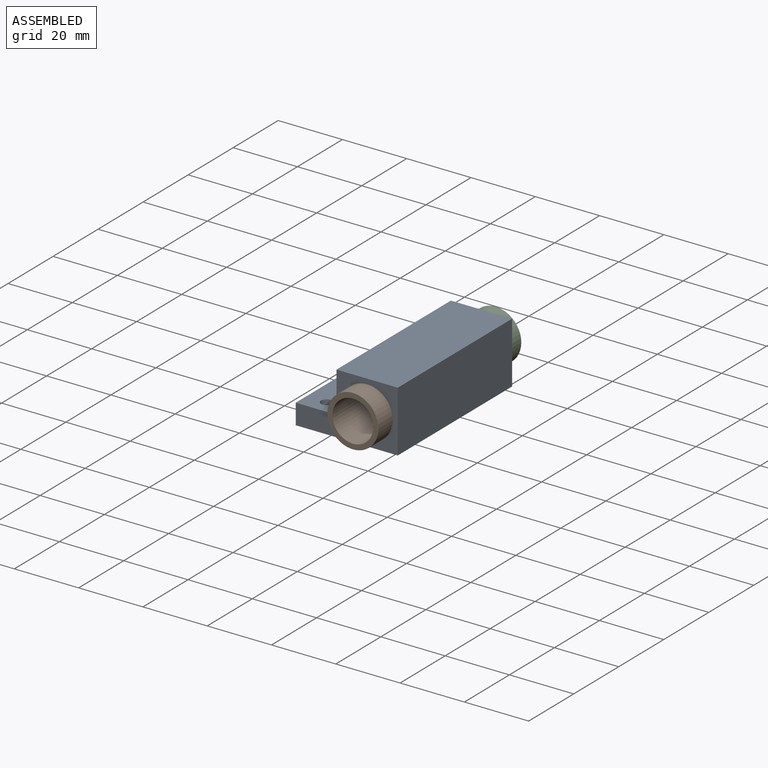
[diagram: assembled view]
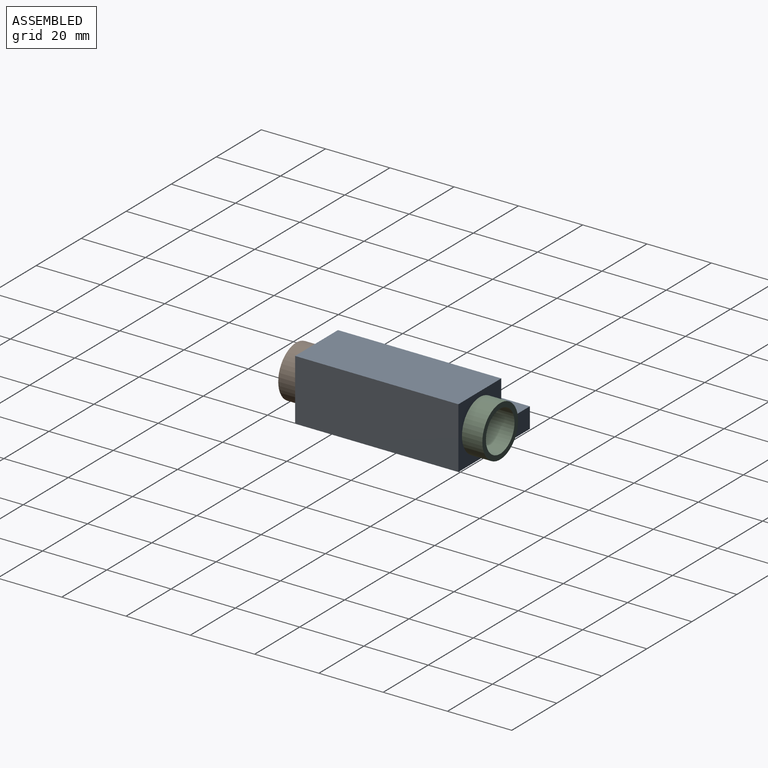
[diagram: assembled view, second angle]
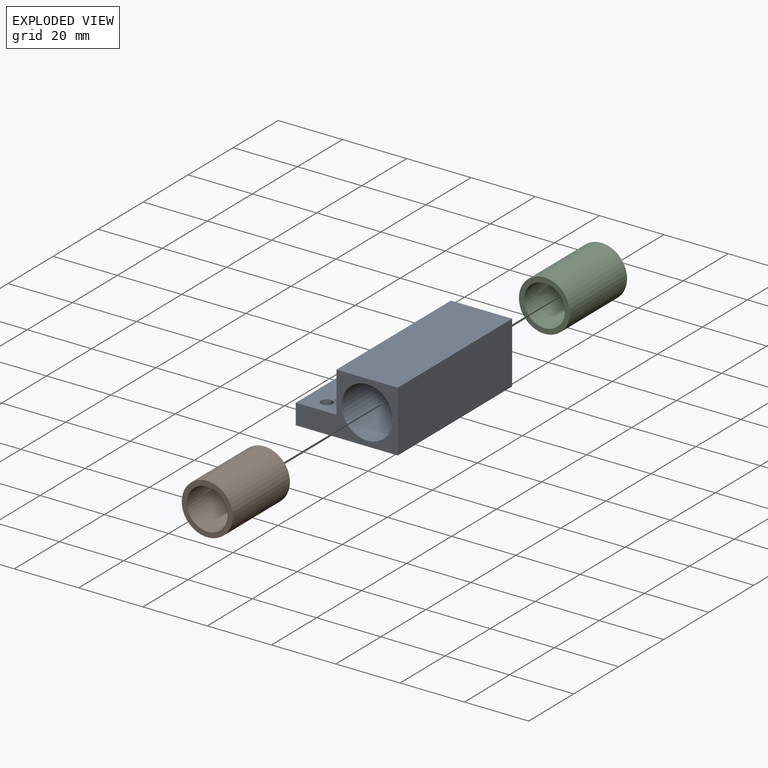
[diagram: exploded view]
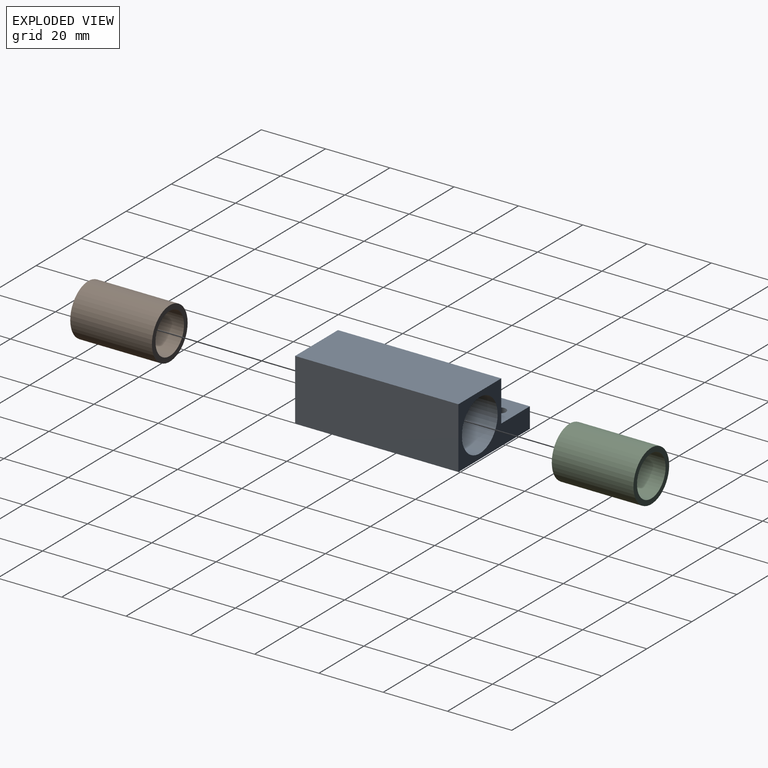
[diagram: exploded view, second angle]
ASSEMBLY  parts=3 mates=2
PART A: 21 faces, bbox 31.8x50.8x19.1 mm
  f0: plane 50.8x19.05mm, normal (-1,0,0), area 725.8mm2, adj f2,f3,f4,f5,f9,f13,f14,f18
  f1: plane 50.8x19.05mm, normal (1,0,0), area 967.7mm2, adj f2,f3,f4,f13
  f2: plane 31.75x19.05mm, normal (0,1,0), area 245.6mm2, adj f0,f1,f3,f4,f8,f9,f11
  f3: plane 50.8x19.05mm, normal (0,0,1), area 967.7mm2, adj f0,f1,f2,f13
  f4: plane 50.8x31.75mm, normal (0,0,-1), area 1411.9mm2, adj f0,f1,f2,f5,f6,f7,f8,f13
  f5: plane 12.7x6.35mm, normal (0,-1,0), area 80.6mm2, adj f0,f4,f8,f9
  f6: cylinder r=1.78mm len=6.35mm, axis (0,0,-1), area 70.9mm2, adj f4,f9
  f7: cylinder r=1.78mm len=6.35mm, axis (0,0,-1), area 70.9mm2, adj f4,f9
  f8: plane 19.05x6.35mm, normal (-1,0,0), area 121mm2, adj f2,f4,f5,f9
  f9: plane 19.05x12.7mm, normal (0,0,1), area 222.1mm2, adj f0,f2,f5,f6,f7,f8
  f10: cylinder r=6.35mm len=12.7mm, axis (0,1,0), area 506.7mm2, adj f12,f20
  f11: cylinder r=7.94mm len=19.05mm, axis (0,1,0), area 950.1mm2, adj f2,f12
  f12: plane 15.88x15.88mm, normal (0,1,0), area 71.3mm2, adj f10,f11
  f13: plane 31.75x19.05mm, normal (0,-1,0), area 245.6mm2, adj f0,f1,f3,f4,f17,f18,f19
  f14: plane 12.7x6.35mm, normal (0,1,0), area 80.6mm2, adj f0,f4,f17,f18
  f15: cylinder r=1.78mm len=6.35mm, axis (0,0,-1), area 70.9mm2, adj f4,f18
  f16: cylinder r=1.78mm len=6.35mm, axis (0,0,-1), area 70.9mm2, adj f4,f18
  f17: plane 19.05x6.35mm, normal (-1,0,0), area 121mm2, adj f4,f13,f14,f18
  f18: plane 19.05x12.7mm, normal (0,0,1), area 222.1mm2, adj f0,f13,f14,f15,f16,f17
  f19: cylinder r=7.94mm len=19.05mm, axis (0,-1,0), area 950.1mm2, adj f13,f20
  f20: plane 15.88x15.88mm, normal (0,-1,0), area 71.3mm2, adj f10,f19
PART B: 4 faces, bbox 15.9x15.9x25.4 mm
  f0: plane 15.88x15.88mm, normal (0,0,1), area 71.3mm2, adj f2,f3
  f1: plane 15.88x15.88mm, normal (0,0,-1), area 71.3mm2, adj f2,f3
  f2: cylinder r=7.94mm len=25.4mm, axis (0,0,-1), area 1266.8mm2, adj f0,f1
  f3: cylinder r=6.35mm len=25.4mm, axis (0,0,-1), area 1013.4mm2, adj f0,f1
PART C: same geometry as B
PLACE A t=(-7.33,20.9,-3.27)mm
PLACE B rot(axis=(-1,0,0),90deg) t=(-7.33,-23.55,6.26)mm
PLACE C rot(axis=(1,0,0),90deg) t=(-7.33,14.55,6.26)mm
MATE fastened B.f2 <-> A.f10  axis (0,1,0) through (-7.33,-10.85,6.26)mm
MATE fastened C.f2 <-> A.f19  axis (0,-1,0) through (-7.33,1.85,6.26)mm
